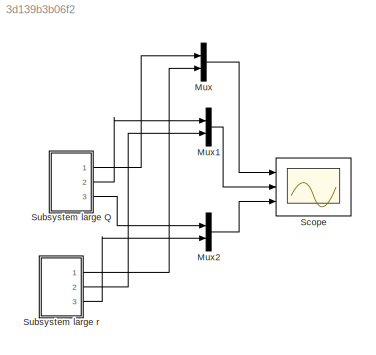
MODEL slx_3d139b3b06f2
KIND model
CONFIG AbsTol = auto
CONFIG EnableMultiTasking = off
CONFIG FixedStep = auto
CONFIG MaxStep = auto
CONFIG MinStep = auto
CONFIG RelTol = 1e-3
CONFIG SampleTimeConstraint = Unconstrained
CONFIG Solver = VariableStepAuto
CONFIG SolverName = VariableStepAuto
CONFIG StartTime = 0.0
CONFIG StopTime = 10.0
BLOCK [Mux] Mux
  DisplayOption = bar
  Inputs = 2
  Ports = [2, 1]
BLOCK [Mux] Mux1
  DisplayOption = bar
  Inputs = 2
  Ports = [2, 1]
BLOCK [Mux] Mux2
  DisplayOption = bar
  Inputs = 2
  Ports = [2, 1]
BLOCK [Scope] Scope
  Floating = off
  NumInputPorts = 3
  Ports = [3]
  ScopeSpecificationString = Simulink.scopes.TimeScopeBlockCfg('CurrentConfiguration', extmgr.ConfigurationSet(extmgr.Configuration('Core','General UI',true),extmgr.Configuration('Core','Source UI',true),extmgr.Configuration('Sources','WiredSimulink',true),extmgr.Configuration('Visuals','Time Domain',true,'SerializedDisplays',{struct('MinYLimReal','-0.63379','MaxYLimReal','5.62598','YLabelReal','','MinYLimMag','0.00000','MaxY...<+2790ch>
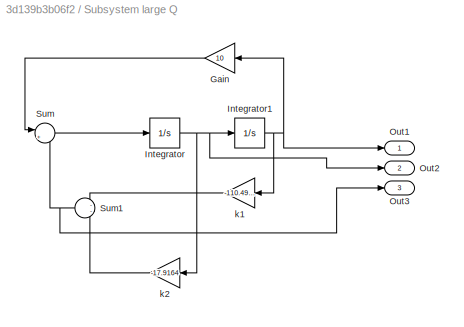
BLOCK [SubSystem] Subsystem large Q
  Ports = [0, 3]
  RequestExecContextInheritance = off
BLOCK [Gain] Subsystem large Q/Gain
  Gain = 10
  NameLocation = top
BLOCK [Integrator] Subsystem large Q/Integrator
  Ports = [1, 1]
BLOCK [Integrator] Subsystem large Q/Integrator1
  InitialCondition = 5
  Ports = [1, 1]
BLOCK [Outport] Subsystem large Q/Out1
BLOCK [Outport] Subsystem large Q/Out2
  Port = 2
BLOCK [Outport] Subsystem large Q/Out3
  Port = 3
BLOCK [Sum] Subsystem large Q/Sum
  Inputs = |+-
  Ports = [2, 1]
BLOCK [Sum] Subsystem large Q/Sum1
  Inputs = --
  NameLocation = top
  Ports = [2, 1]
BLOCK [Gain] Subsystem large Q/k1
  Gain = -110.4988
  NameLocation = top
BLOCK [Gain] Subsystem large Q/k2
  Gain = -17.9164
  NameLocation = top
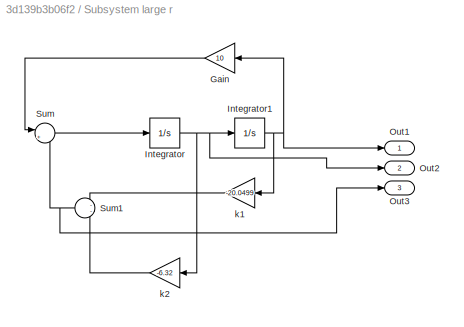
BLOCK [SubSystem] Subsystem large r
  Ports = [0, 3]
  RequestExecContextInheritance = off
BLOCK [Gain] Subsystem large r/Gain
  Gain = 10
  NameLocation = top
BLOCK [Integrator] Subsystem large r/Integrator
  Ports = [1, 1]
BLOCK [Integrator] Subsystem large r/Integrator1
  InitialCondition = 5
  Ports = [1, 1]
BLOCK [Outport] Subsystem large r/Out1
BLOCK [Outport] Subsystem large r/Out2
  Port = 2
BLOCK [Outport] Subsystem large r/Out3
  Port = 3
BLOCK [Sum] Subsystem large r/Sum
  Inputs = |+-
  Ports = [2, 1]
BLOCK [Sum] Subsystem large r/Sum1
  Inputs = --
  NameLocation = top
  Ports = [2, 1]
BLOCK [Gain] Subsystem large r/k1
  Gain = -20.0499
  NameLocation = top
BLOCK [Gain] Subsystem large r/k2
  Gain = -6.32
  NameLocation = top
LINE Mux1:1 -> Scope:2
LINE Mux2:1 -> Scope:3
LINE Mux:1 -> Scope:1
LINE Subsystem large Q/Gain:1 -> Subsystem large Q/Sum:1
NET Subsystem large Q/Integrator1:1 -> Subsystem large Q/Gain:1, Subsystem large Q/Out1:1, Subsystem large Q/k1:1
NET Subsystem large Q/Integrator:1 -> Subsystem large Q/Integrator1:1, Subsystem large Q/Out2:1, Subsystem large Q/k2:1
NET Subsystem large Q/Sum1:1 -> Subsystem large Q/Out3:1, Subsystem large Q/Sum:2
LINE Subsystem large Q/Sum:1 -> Subsystem large Q/Integrator:1
LINE Subsystem large Q/k1:1 -> Subsystem large Q/Sum1:1
LINE Subsystem large Q/k2:1 -> Subsystem large Q/Sum1:2
LINE Subsystem large Q:1 -> Mux:1
LINE Subsystem large Q:2 -> Mux1:1
LINE Subsystem large Q:3 -> Mux2:1
LINE Subsystem large r/Gain:1 -> Subsystem large r/Sum:1
NET Subsystem large r/Integrator1:1 -> Subsystem large r/Gain:1, Subsystem large r/Out1:1, Subsystem large r/k1:1
NET Subsystem large r/Integrator:1 -> Subsystem large r/Integrator1:1, Subsystem large r/Out2:1, Subsystem large r/k2:1
NET Subsystem large r/Sum1:1 -> Subsystem large r/Out3:1, Subsystem large r/Sum:2
LINE Subsystem large r/Sum:1 -> Subsystem large r/Integrator:1
LINE Subsystem large r/k1:1 -> Subsystem large r/Sum1:1
LINE Subsystem large r/k2:1 -> Subsystem large r/Sum1:2
LINE Subsystem large r:1 -> Mux:2
LINE Subsystem large r:2 -> Mux1:2
LINE Subsystem large r:3 -> Mux2:2
note: NET lines group one-source signal fan-out (src -> all destinations, sorted); 1:1 wires keep LINE
